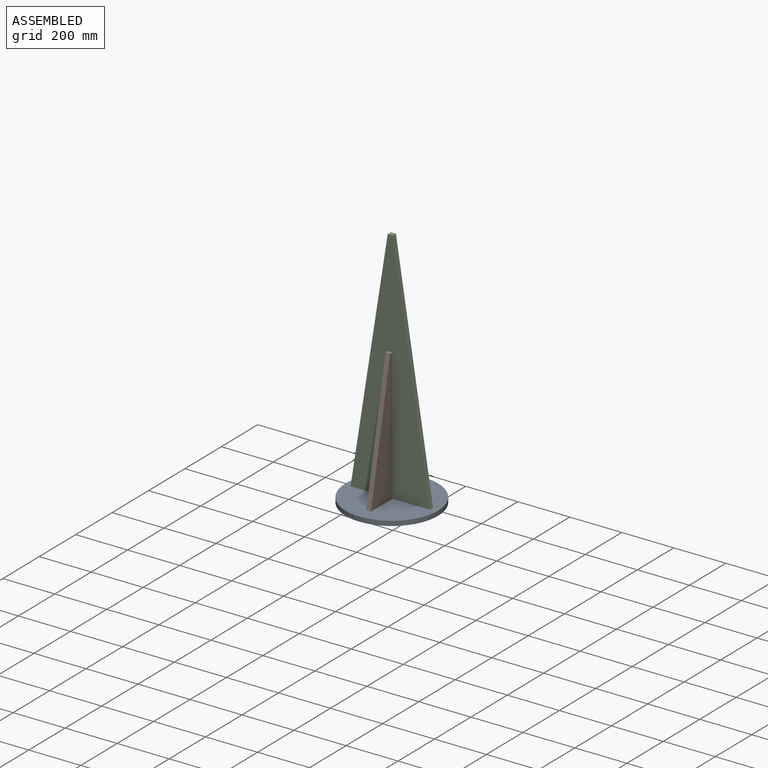
[diagram: assembled view]
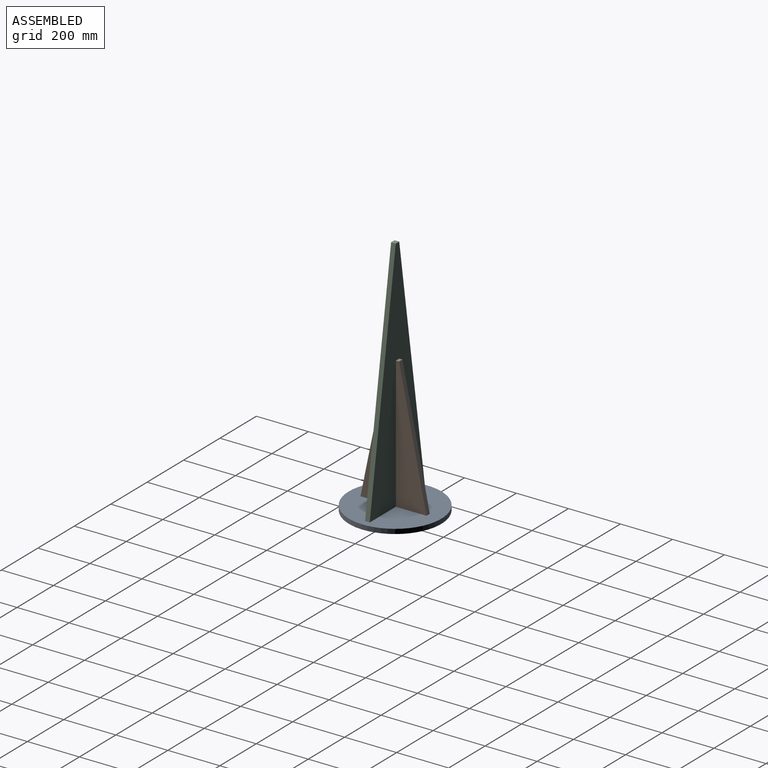
[diagram: assembled view, second angle]
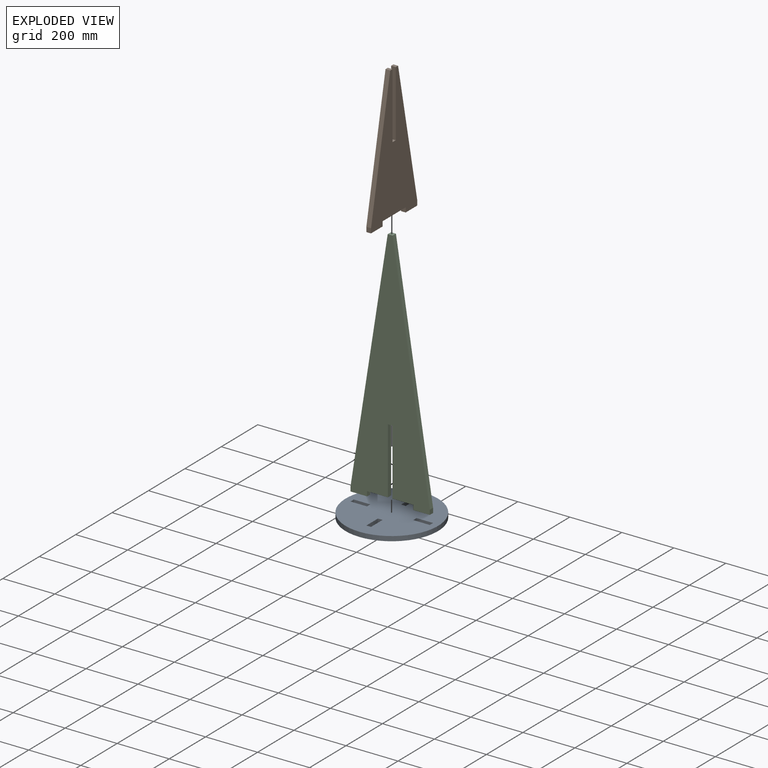
[diagram: exploded view]
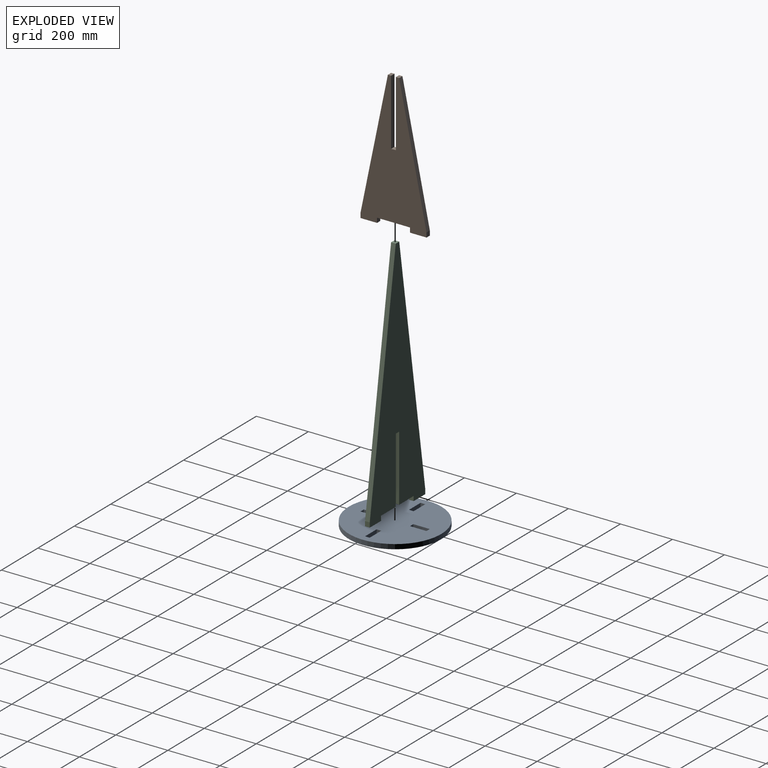
[diagram: exploded view, second angle]
ASSEMBLY  parts=3 mates=2
PART A: 19 faces, bbox 355.6x18x355.6 mm
  f0: plane 63.5x18.03mm, normal (0,0,-1), area 1145.2mm2, adj f1,f16,f17,f18
  f1: plane 18.03x18.03mm, normal (-1,0,0), area 325.2mm2, adj f0,f2,f17,f18
  f2: plane 63.5x18.03mm, normal (0,0,1), area 1145.2mm2, adj f1,f16,f17,f18
  f3: plane 18.03x18.03mm, normal (0,0,-1), area 325.2mm2, adj f4,f12,f17,f18
  f4: plane 63.5x18.03mm, normal (-1,0,0), area 1145.2mm2, adj f3,f5,f17,f18
  f5: plane 18.03x18.03mm, normal (0,0,1), area 325.2mm2, adj f4,f12,f17,f18
  f6: plane 63.5x18.03mm, normal (-1,0,0), area 1145.2mm2, adj f7,f14,f17,f18
  f7: plane 18.03x18.03mm, normal (0,0,1), area 325.2mm2, adj f6,f8,f17,f18
  f8: plane 63.5x18.03mm, normal (1,0,0), area 1145.2mm2, adj f7,f14,f17,f18
  f9: plane 18.03x18.03mm, normal (1,0,0), area 325.2mm2, adj f10,f15,f17,f18
  f10: plane 63.5x18.03mm, normal (0,0,-1), area 1145.2mm2, adj f9,f11,f17,f18
  f11: plane 18.03x18.03mm, normal (-1,0,0), area 325.2mm2, adj f10,f15,f17,f18
  f12: plane 63.5x18.03mm, normal (1,0,0), area 1145.2mm2, adj f3,f5,f17,f18
  f13: cylinder r=177.8mm len=355.6mm, axis (0,1,0), area 20146.7mm2, adj f17,f18
  f14: plane 18.03x18.03mm, normal (0,0,-1), area 325.2mm2, adj f6,f8,f17,f18
  f15: plane 63.5x18.03mm, normal (0,0,1), area 1145.2mm2, adj f9,f11,f17,f18
  f16: plane 18.03x18.03mm, normal (1,0,0), area 325.2mm2, adj f0,f2,f17,f18
  f17: plane 355.6x355.6mm, normal (0,-1,0), area 94734mm2, adj f0,f1,f2,f3,f4,f5,f6,f7
  f18: plane 355.6x355.6mm, normal (0,1,0), area 94734mm2, adj f0,f1,f2,f3,f4,f5,f6,f7
PART B: 16 faces, bbox 254x18x526 mm
  f0: plane 508x105.28mm, normal (-0.98,0,0.2), area 9356mm2, adj f1,f13,f14,f15
  f1: plane 18.03x18.03mm, normal (-1,0,0), area 325.2mm2, adj f0,f2,f14,f15
  f2: plane 63.5x18.03mm, normal (0,0,-1), area 1145.2mm2, adj f1,f3,f14,f15
  f3: plane 18.03x18.03mm, normal (1,0,0), area 325.2mm2, adj f2,f4,f14,f15
  f4: plane 127x18.03mm, normal (0,0,-1), area 2290.3mm2, adj f3,f5,f14,f15
  f5: plane 18.03x18.03mm, normal (-1,0,0), area 325.2mm2, adj f4,f6,f14,f15
  f6: plane 63.5x18.03mm, normal (0,0,-1), area 1145.2mm2, adj f5,f7,f14,f15
  f7: plane 18.03x18.03mm, normal (1,0,0), area 325.2mm2, adj f6,f8,f14,f15
  f8: plane 508x105.28mm, normal (0.98,0,0.2), area 9356mm2, adj f7,f9,f14,f15
  f9: plane 18.03x12.7mm, normal (0,0,1), area 229mm2, adj f8,f10,f14,f15
  f10: plane 254x18.03mm, normal (-1,0,0), area 4580.6mm2, adj f9,f11,f14,f15
  f11: plane 18.03x18.03mm, normal (0,0,1), area 325.2mm2, adj f10,f12,f14,f15
  f12: plane 254x18.03mm, normal (1,0,0), area 4580.6mm2, adj f11,f13,f14,f15
  f13: plane 18.03x12.7mm, normal (0,0,1), area 229mm2, adj f0,f12,f14,f15
  f14: plane 526.03x254mm, normal (0,-1,0), area 73257.9mm2, adj f0,f1,f2,f3,f4,f5,f6,f7
  f15: plane 526.03x254mm, normal (0,1,0), area 73257.9mm2, adj f0,f1,f2,f3,f4,f5,f6,f7
PART C: 16 faces, bbox 304.8x18x932.4 mm
  f0: plane 254x18.03mm, normal (-1,0,0), area 4580.6mm2, adj f1,f13,f14,f15
  f1: plane 79.88x18.03mm, normal (0,0,-1), area 1440.6mm2, adj f0,f2,f14,f15
  f2: plane 18.03x18.03mm, normal (-1,0,0), area 325.2mm2, adj f1,f3,f14,f15
  f3: plane 63.5x18.03mm, normal (0,0,-1), area 1145.2mm2, adj f2,f4,f14,f15
  f4: plane 18.03x18.03mm, normal (1,0,0), area 325.2mm2, adj f3,f5,f14,f15
  f5: plane 914.4x142.88mm, normal (0.99,0,0.15), area 16690.4mm2, adj f4,f6,f14,f15
  f6: plane 19.05x18.03mm, normal (0,0,1), area 343.5mm2, adj f5,f7,f14,f15
  f7: plane 914.4x142.88mm, normal (-0.99,0,0.15), area 16690.4mm2, adj f6,f8,f14,f15
  f8: plane 18.03x18.03mm, normal (-1,0,0), area 325.2mm2, adj f7,f9,f14,f15
  f9: plane 63.5x18.03mm, normal (0,0,-1), area 1145.2mm2, adj f8,f10,f14,f15
  f10: plane 18.03x18.03mm, normal (1,0,0), area 325.2mm2, adj f9,f11,f14,f15
  f11: plane 79.88x18.03mm, normal (0,0,-1), area 1440.6mm2, adj f10,f12,f14,f15
  f12: plane 254x18.03mm, normal (1,0,0), area 4580.6mm2, adj f11,f13,f14,f15
  f13: plane 18.03x18.03mm, normal (0,0,-1), area 325.2mm2, adj f0,f12,f14,f15
  f14: plane 932.43x304.8mm, normal (0,-1,0), area 145773.9mm2, adj f0,f1,f2,f3,f4,f5,f6,f7
  f15: plane 932.43x304.8mm, normal (0,1,0), area 145773.9mm2, adj f0,f1,f2,f3,f4,f5,f6,f7
PLACE A rot(axis=(0,0.71,0.71),180deg) t=(-247.63,292.35,-273.11)mm
PLACE B rot(axis=(0,0,-1),90deg) t=(-86.21,152.65,-273.11)mm
PLACE C t=(57.17,-3.43,-273.11)mm fixed
MATE fastened B.f11 <-> C.f13  axis (0,0,1) through (-95.23,-12.45,-19.11)mm
MATE fastened C.f11 <-> A.f18  axis (0,0,-1) through (-184.13,-12.45,-273.11)mm
